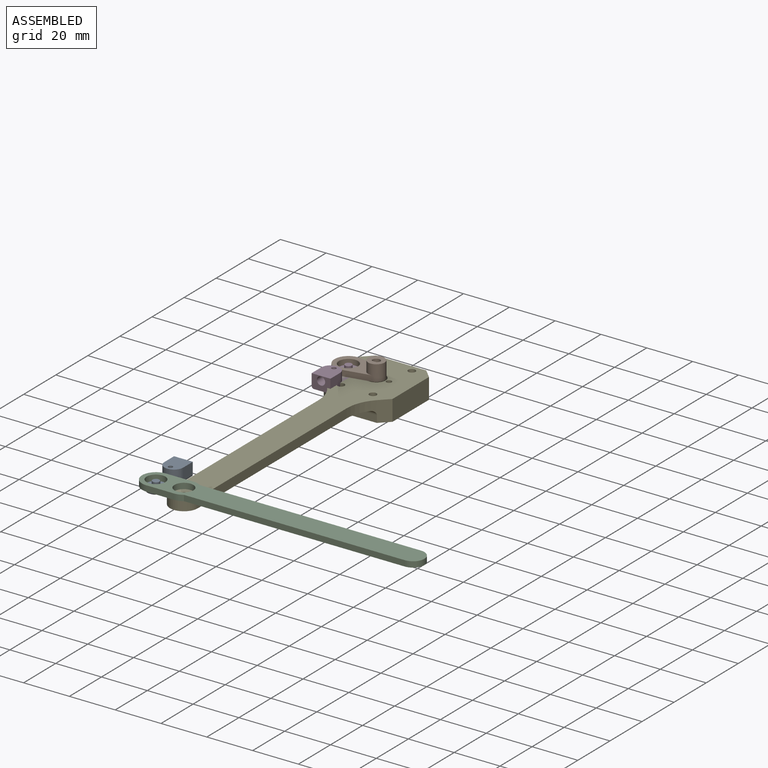
[diagram: assembled view]
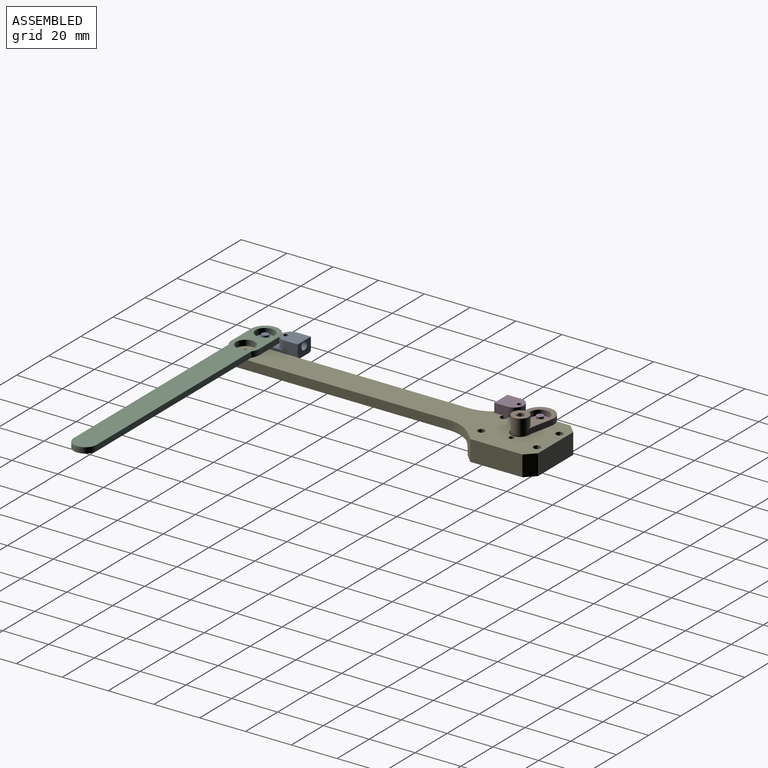
[diagram: assembled view, second angle]
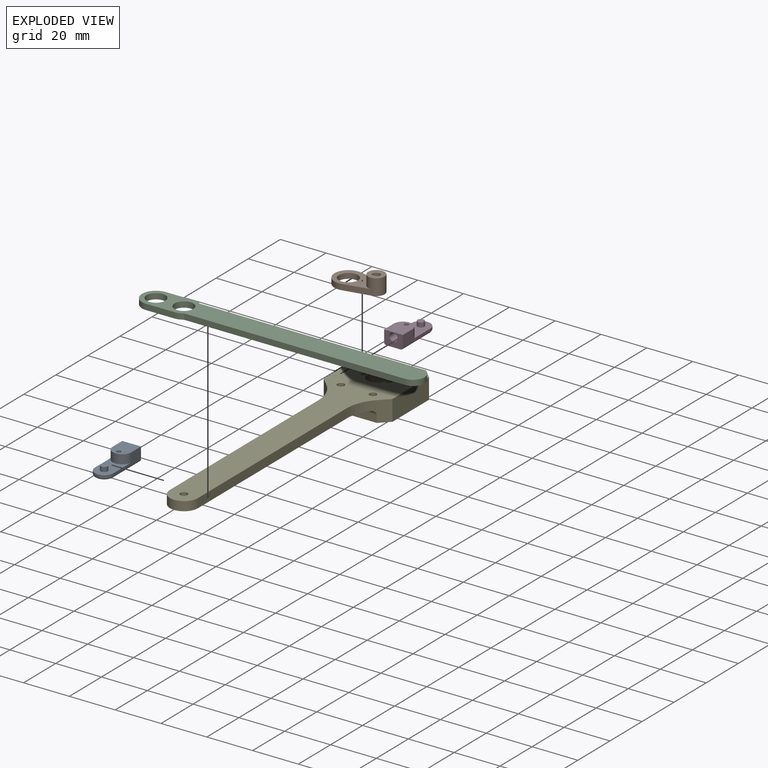
[diagram: exploded view]
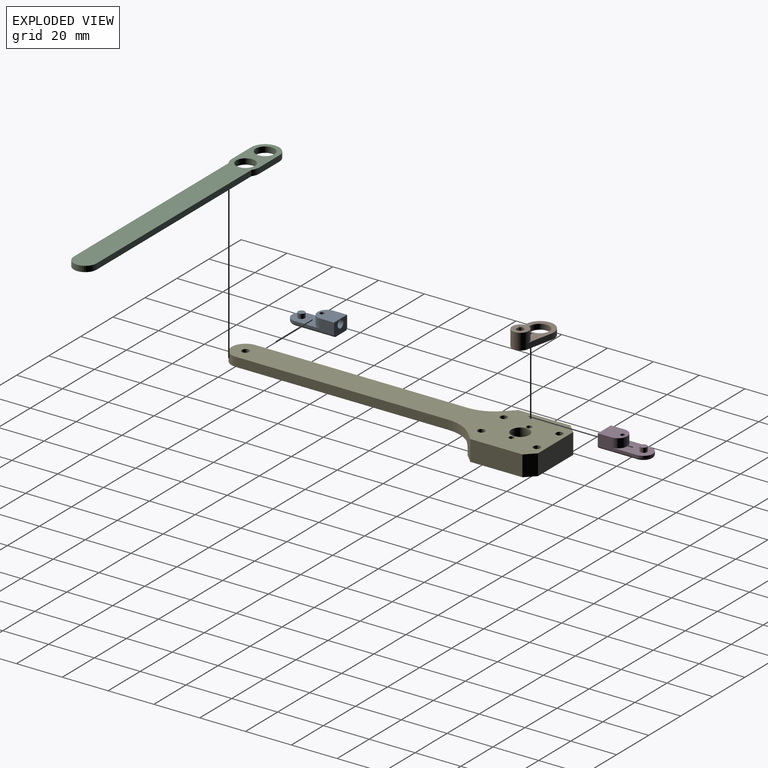
[diagram: exploded view, second angle]
ASSEMBLY  parts=5 mates=3
PART A: 18 faces, bbox 8.9x21.5x6 mm
  f0: plane 17.1x5mm, normal (-1,0,0), area 41.1mm2, adj f1,f5,f6,f10,f12,f14
  f1: plane 8.2x6mm, normal (0,-1,0), area 38.6mm2, adj f0,f2,f3,f7,f9,f10,f14
  f2: plane 17.1x5mm, normal (1,0,0), area 41.1mm2, adj f1,f5,f6,f9,f13,f14
  f3: plane 20.2x6.2mm, normal (0,0,-1), area 118.3mm2, adj f1,f9,f10,f11,f15
  f4: plane 4x0.2mm, normal (0,1,0), area 0.8mm2, adj f6,f12,f13,f14
  f5: cylinder r=4.1mm len=8.2mm, axis (0,0,-1), area 12.9mm2, adj f0,f2,f6,f11
  f6: plane 15.2x8.2mm, normal (0,0,1), area 84.4mm2, adj f0,f2,f4,f5,f12,f13,f16
  f7: cylinder r=1.8mm len=6mm, axis (0,-1,0), area 67.9mm2, adj f1,f8
  f8: plane 3.6x3.6mm, normal (0,-1,0), area 10.2mm2, adj f7
  f9: cylinder r=1mm len=17.1mm, axis (0,1,0), area 26.9mm2, adj f1,f2,f3,f11
  f10: cylinder r=1mm len=17.1mm, axis (0,-1,0), area 26.9mm2, adj f0,f1,f3,f11
  f11: torus R=3.1mm, axis (0,0,1), area 18.4mm2, adj f3,f5,f9,f10
  f12: cylinder r=4mm len=4mm, axis (0,0,-1), area 25.1mm2, adj f0,f4,f6,f14
  f13: cylinder r=4mm len=4mm, axis (0,0,1), area 25.1mm2, adj f2,f4,f6,f14
  f14: plane 10x8.2mm, normal (0,0,1), area 72.3mm2, adj f0,f1,f2,f4,f12,f13,f15
  f15: cylinder r=0.95mm len=6mm, axis (0,0,1), area 35.8mm2, adj f3,f14
  f16: cylinder r=1.5mm len=3mm, axis (0,0,-1), area 18.8mm2, adj f6,f17
  f17: plane 3x3mm, normal (0,0,1), area 7.1mm2, adj f16
PART B: 13 faces, bbox 21.9x12.2x7 mm
  f0: plane 21.9x12.2mm, normal (0,0,-1), area 139.4mm2, adj f1,f2,f3,f4,f5,f6,f8
  f1: cylinder r=1.6mm len=6.8mm, axis (0,0,-1), area 52.6mm2, adj f0,f6,f12
  f2: cylinder r=6.1mm len=12.2mm, axis (0,0,-1), area 54.2mm2, adj f0,f3,f4,f7
  f3: plane 11.69x2.5mm, normal (0.2,-0.98,0), area 29.9mm2, adj f0,f2,f7,f8
  f4: plane 11.69x2.5mm, normal (0.2,0.98,0), area 29.9mm2, adj f0,f2,f7,f8
  f5: cylinder r=4.1mm len=8.2mm, axis (0,0,-1), area 59.3mm2, adj f0,f10
  f6: plane 6.8x2.12mm, normal (0,1,0), area 14.4mm2, adj f0,f1,f11
  f7: plane 19.04x12.2mm, normal (0,0,1), area 100.8mm2, adj f2,f3,f4,f8,f10
  f8: cylinder r=3.6mm len=7.2mm, axis (0,0,-1), area 126.3mm2, adj f0,f3,f4,f7,f9
  f9: plane 7.2x7.2mm, normal (0,0,1), area 31.2mm2, adj f8,f11,f12
  f10: cone r=4.1mm half-angle=45deg, axis (0,0,1), area 7.5mm2, adj f5,f7
  f11: plane 2.27x0.2mm, normal (0,0.71,0.71), area 0.6mm2, adj f6,f9,f12
  f12: cone r=1.6mm half-angle=45deg, axis (0,0,1), area 2.3mm2, adj f1,f9,f11
PART C: 12 faces, bbox 123.3x12.2x2.5 mm
  f0: plane 96.51x2.5mm, normal (0,1,0), area 241.3mm2, adj f1,f8,f10,f11
  f1: cylinder r=6.1mm len=3.49mm, axis (0,0,-1), area 9.3mm2, adj f0,f2,f10,f11
  f2: plane 12.2x2.5mm, normal (0,1,0), area 30.5mm2, adj f1,f3,f10,f11
  f3: cylinder r=6.1mm len=12.2mm, axis (0,0,-1), area 47.9mm2, adj f2,f4,f10,f11
  f4: plane 12.2x2.5mm, normal (0,-1,0), area 30.5mm2, adj f3,f5,f10,f11
  f5: cylinder r=6.1mm len=3.49mm, axis (0,0,-1), area 9.3mm2, adj f4,f6,f10,f11
  f6: plane 96.51x2.5mm, normal (0,-1,0), area 241.3mm2, adj f5,f8,f10,f11
  f7: cylinder r=4.1mm len=8.2mm, axis (0,0,-1), area 64.4mm2, adj f10,f11
  f8: cylinder r=5mm len=10mm, axis (0,0,-1), area 39.3mm2, adj f0,f6,f10,f11
  f9: cylinder r=4.1mm len=8.2mm, axis (0,0,-1), area 64.4mm2, adj f10,f11
  f10: plane 123.3x12.2mm, normal (0,0,1), area 1146.2mm2, adj f0,f1,f2,f3,f4,f5,f6,f7
  f11: plane 123.3x12.2mm, normal (0,0,-1), area 1146.2mm2, adj f0,f1,f2,f3,f4,f5,f6,f7
PART D: same geometry as A
PART E: 27 faces, bbox 30x141.5x9 mm
  f0: plane 22x3mm, normal (0,-1,0), area 66mm2, adj f2,f11,f13,f26
  f1: cylinder r=8.1mm len=16.2mm, axis (0,0,1), area 254.5mm2, adj f13,f18
  f2: plane 9x4mm, normal (0.71,-0.71,0), area 50.9mm2, adj f0,f3,f13,f14,f25
  f3: plane 22.75x9mm, normal (1,0,0), area 204.7mm2, adj f2,f4,f13,f14
  f4: plane 9x4mm, normal (0.71,0.71,0), area 50.9mm2, adj f3,f5,f13,f14
  f5: plane 22x9mm, normal (0,1,0), area 198mm2, adj f4,f6,f13,f14
  f6: plane 9x4mm, normal (-0.71,0.71,0), area 50.9mm2, adj f5,f7,f13,f14
  f7: plane 22.75x9mm, normal (-1,0,0), area 204.7mm2, adj f6,f11,f13,f14
  f8: cylinder r=1.55mm len=9mm, axis (0,0,1), area 87.7mm2, adj f13,f14
  f9: cylinder r=1.55mm len=9mm, axis (0,0,1), area 87.7mm2, adj f13,f14
  f10: cylinder r=1.55mm len=9mm, axis (0,0,1), area 87.7mm2, adj f13,f14
  f11: plane 9x4mm, normal (-0.71,-0.71,0), area 50.9mm2, adj f0,f7,f13,f14,f20
  f12: cylinder r=1.55mm len=9mm, axis (0,0,1), area 87.7mm2, adj f13,f14
  f13: plane 30.75x30mm, normal (0,0,-1), area 654.2mm2, adj f0,f1,f2,f3,f4,f5,f6,f7
  f14: plane 141.48x30mm, normal (0,0,1), area 2164.6mm2, adj f2,f3,f4,f5,f6,f7,f8,f9
  f15: cylinder r=4mm len=8mm, axis (0,0,1), area 100.5mm2, adj f14,f18
  f16: cylinder r=1.15mm len=4mm, axis (0,0,1), area 28.9mm2, adj f14,f18
  f17: cylinder r=1.15mm len=4mm, axis (0,0,1), area 28.9mm2, adj f14,f18
  f18: plane 16.2x16.2mm, normal (0,0,-1), area 147.5mm2, adj f1,f15,f16,f17
  f19: plane 108.73x18.58mm, normal (0,0,-1), area 1322.5mm2, adj f20,f21,f22,f23,f24,f25,f26
  f20: cylinder r=16.73mm len=11.83mm, axis (0,0,1), area 53.7mm2, adj f11,f14,f19,f21,f26
  f21: plane 92.8x4mm, normal (-1,0,0), area 371.2mm2, adj f14,f19,f20,f22
  f22: cylinder r=6.1mm len=12.2mm, axis (0,0,1), area 76.7mm2, adj f14,f19,f21,f24
  f23: cylinder r=1.6mm len=4mm, axis (0,0,1), area 40.2mm2, adj f14,f19
  f24: plane 92.8x4mm, normal (1,0,0), area 371.2mm2, adj f14,f19,f22,f25
  f25: cylinder r=16.73mm len=11.83mm, axis (0,0,1), area 53.7mm2, adj f2,f14,f19,f24,f26
  f26: cylinder r=2mm len=22mm, axis (-1,0,0), area 65mm2, adj f0,f19,f20,f25
PLACE A rot(axis=(0,0,1),180deg) t=(-12.2,-120,-2)mm
PLACE B at identity fixed
PLACE C t=(-12.2,-120,0)mm
PLACE D t=(-12.2,0,-2)mm
PLACE E at identity fixed
MATE revolute E.f22 <-> C.f7  axis (0,0,1) through (0,-120,0)mm
MATE cylindrical A.f5 <-> C.f9  axis (0,0,1) through (-12.2,-120,0)mm
MATE revolute D.f16 <-> B.f2  axis (0,0,-1) through (-12.2,0,0)mm
